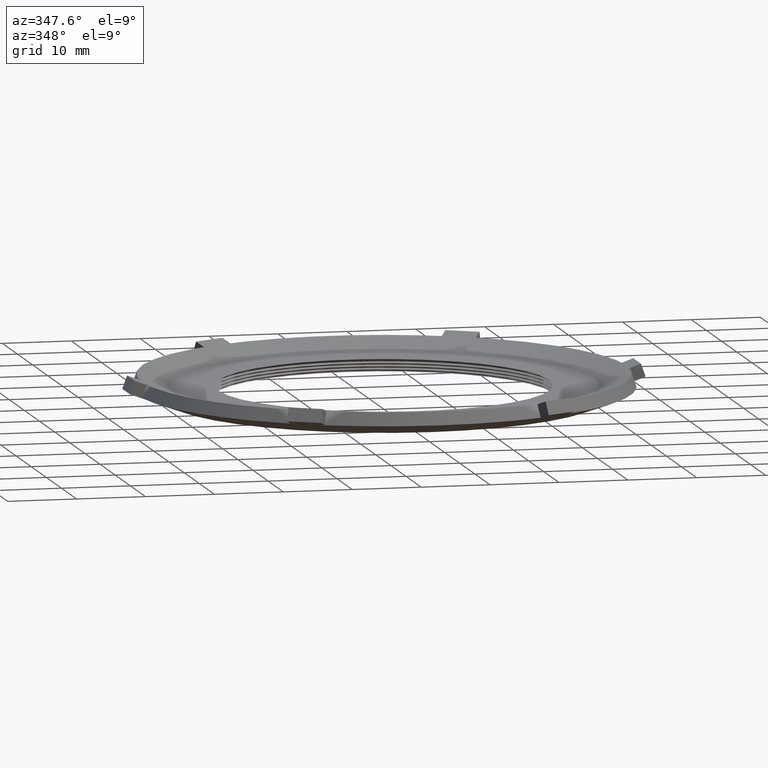
[diagram: clean part render]
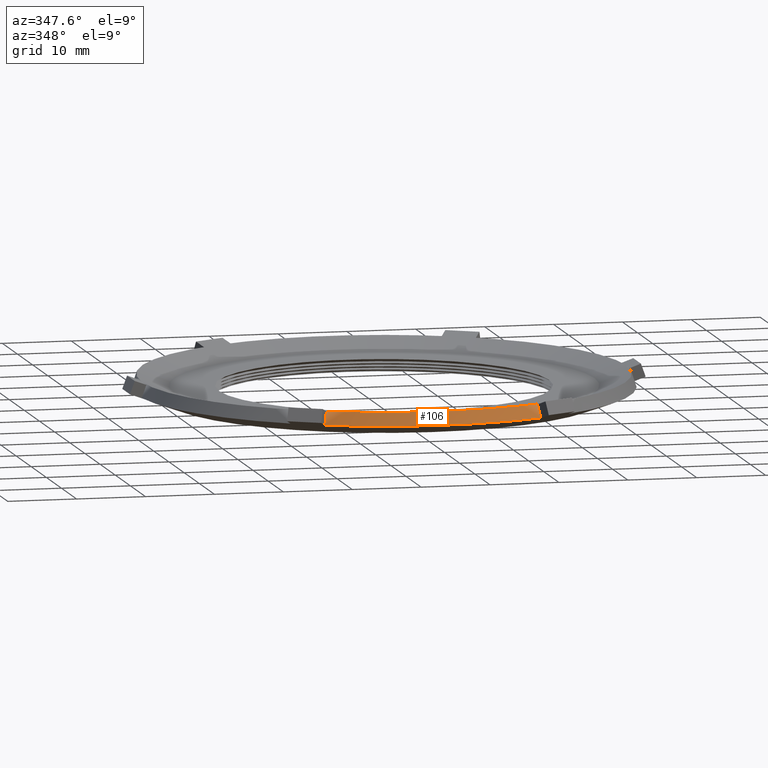
[diagram: same view with one face highlighted and labeled with its STEP entity id]
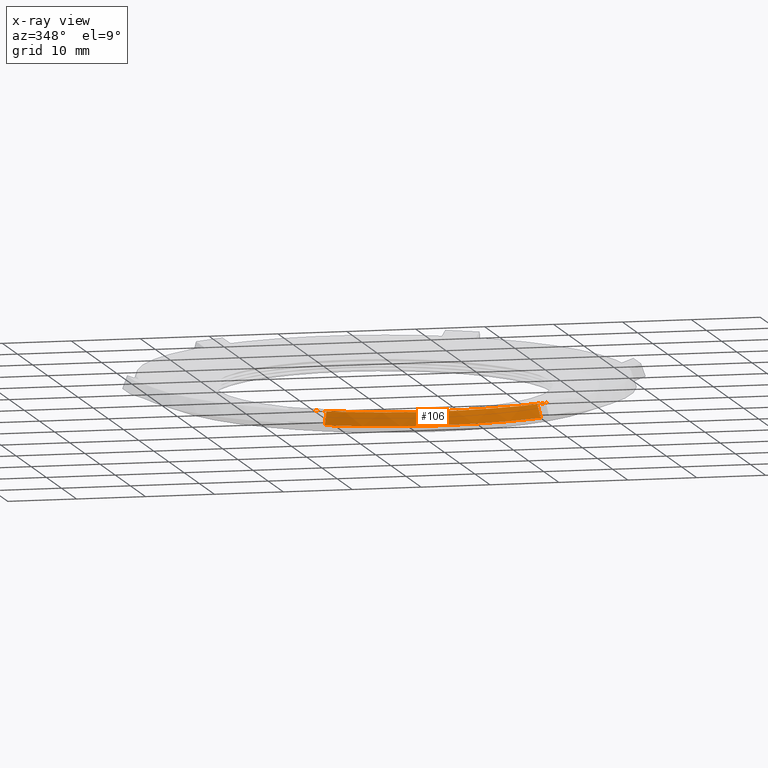
[diagram: x-ray of the same camera — body ghosted, the highlighted face saturated]
A machine part, auxiliary view. The second image highlights one B-rep face of the part: STEP entity #106.
The next image is the same camera in x-ray: the body ghosted, the highlighted face saturated — about 0% of this face is hidden behind the body in this view.
In plain terms, the highlighted conical surface has half-angle 20 deg.
Its self-contained STEP definition (entity closure, byte-faithful):
#7 = VERTEX_POINT ( 'NONE', #844 ) ;
#9 = EDGE_CURVE ( 'NONE', #7, #16, #831, .T. ) ;
#16 = VERTEX_POINT ( 'NONE', #782 ) ;
#95 = ORIENTED_EDGE ( 'NONE', *, *, #396, .T. ) ;
#101 = EDGE_CURVE ( 'NONE', #433, #16, #973, .T. ) ;
#106 = ADVANCED_FACE ( 'NONE', ( #963 ), #962, .T. ) ;
#108 = ORIENTED_EDGE ( 'NONE', *, *, #109, .F. ) ;
#109 = EDGE_CURVE ( 'NONE', #7, #158, #956, .T. ) ;
#146 = VERTEX_POINT ( 'NONE', #1058 ) ;
#155 = ORIENTED_EDGE ( 'NONE', *, *, #9, .T. ) ;
#156 = ORIENTED_EDGE ( 'NONE', *, *, #101, .F. ) ;
#157 = EDGE_LOOP ( 'NONE', ( #108, #155, #156, #397, #257, #95 ) ) ;
#158 = VERTEX_POINT ( 'NONE', #1073 ) ;
#243 = EDGE_CURVE ( 'NONE', #274, #146, #1244, .T. ) ;
#257 = ORIENTED_EDGE ( 'NONE', *, *, #243, .F. ) ;
#274 = VERTEX_POINT ( 'NONE', #1331 ) ;
#396 = EDGE_CURVE ( 'NONE', #274, #158, #1532, .T. ) ;
#397 = ORIENTED_EDGE ( 'NONE', *, *, #425, .F. ) ;
#425 = EDGE_CURVE ( 'NONE', #146, #433, #1545, .T. ) ;
#433 = VERTEX_POINT ( 'NONE', #1579 ) ;
#757 = DIRECTION ( 'NONE',  ( -1.000000000000000000, 0.0000000000000000000, 0.0000000000000000000 ) ) ;
#782 = CARTESIAN_POINT ( 'NONE',  ( -0.6914447734302168200, -1.197617478209111800, 0.06000000000000010900 ) ) ;
#829 = DIRECTION ( 'NONE',  ( -0.0000000000000000000, -0.0000000000000000000, -1.000000000000000000 ) ) ;
#830 = AXIS2_PLACEMENT_3D ( 'NONE', #837, #829, #757 ) ;
#831 = CIRCLE ( 'NONE', #830, 1.382889546860454700 ) ;
#837 = CARTESIAN_POINT ( 'NONE',  ( 0.0000000000000000000, 0.0000000000000000000, 0.05999999999999990800 ) ) ;
#844 = CARTESIAN_POINT ( 'NONE',  ( 0.6914447734302418000, -1.197617478209097600, 0.06000000000000010900 ) ) ;
#952 = CARTESIAN_POINT ( 'NONE',  ( 0.6032442958181920600, -1.244849769733186400, 0.05883679682148340600 ) ) ;
#953 = CARTESIAN_POINT ( 'NONE',  ( 0.6331431350213588800, -1.230047440914452200, 0.05961213597233693700 ) ) ;
#954 = CARTESIAN_POINT ( 'NONE',  ( 0.6625531238524068300, -1.214298079870193000, 0.05999999999999990800 ) ) ;
#955 = CARTESIAN_POINT ( 'NONE',  ( 0.6914447734302418000, -1.197617478209097600, 0.06000000000000010900 ) ) ;
#956 =( BOUNDED_CURVE ( )  B_SPLINE_CURVE ( 3, ( #955, #954, #953, #952 ),
 .UNSPECIFIED., .F., .T. ) 
 B_SPLINE_CURVE_WITH_KNOTS ( ( 4, 4 ),
 ( 3.141592653589793100, 3.204925624186388600 ),
 .UNSPECIFIED. ) 
 CURVE ( )  GEOMETRIC_REPRESENTATION_ITEM ( )  RATIONAL_B_SPLINE_CURVE ( ( 1.000000000000000000, 0.9996657725003570400, 0.9996657725003570400, 1.000000000000000000 ) ) 
 REPRESENTATION_ITEM ( '' )  );
#958 = DIRECTION ( 'NONE',  ( -1.000000000000000000, 0.0000000000000000000, 0.0000000000000000000 ) ) ;
#959 = DIRECTION ( 'NONE',  ( -0.0000000000000000000, -0.0000000000000000000, -1.000000000000000000 ) ) ;
#960 = CARTESIAN_POINT ( 'NONE',  ( 0.0000000000000000000, 0.0000000000000000000, 0.05999999999999990800 ) ) ;
#961 = AXIS2_PLACEMENT_3D ( 'NONE', #960, #959, #958 ) ;
#962 = CONICAL_SURFACE ( 'NONE', #961, 1.382889546860454700, 0.3490658503988599600 ) ;
#963 = FACE_OUTER_BOUND ( 'NONE', #157, .T. ) ;
#969 = CARTESIAN_POINT ( 'NONE',  ( -0.6914447734302168200, -1.197617478209111800, 0.06000000000000010900 ) ) ;
#970 = CARTESIAN_POINT ( 'NONE',  ( -0.6625531238523807400, -1.214298079870206100, 0.05999999999999963000 ) ) ;
#971 = CARTESIAN_POINT ( 'NONE',  ( -0.6331431350213326800, -1.230047440914464800, 0.05961213597233666600 ) ) ;
#972 = CARTESIAN_POINT ( 'NONE',  ( -0.6032442958181663000, -1.244849769733198800, 0.05883679682148351700 ) ) ;
#973 =( BOUNDED_CURVE ( )  B_SPLINE_CURVE ( 3, ( #972, #971, #970, #969 ),
 .UNSPECIFIED., .F., .T. ) 
 B_SPLINE_CURVE_WITH_KNOTS ( ( 4, 4 ),
 ( 3.078259682993197600, 3.141592653589793100 ),
 .UNSPECIFIED. ) 
 CURVE ( )  GEOMETRIC_REPRESENTATION_ITEM ( )  RATIONAL_B_SPLINE_CURVE ( ( 1.000000000000000000, 0.9996657725003570400, 0.9996657725003570400, 1.000000000000000000 ) ) 
 REPRESENTATION_ITEM ( '' )  );
#1058 = CARTESIAN_POINT ( 'NONE',  ( -0.6166221747731096500, -1.268020935780667800, -0.01448535783208481300 ) ) ;
#1073 = CARTESIAN_POINT ( 'NONE',  ( 0.6032442958181920600, -1.244849769733186400, 0.05883679682148340600 ) ) ;
#1242 = CARTESIAN_POINT ( 'NONE',  ( 0.0000000000000000000, 0.0000000000000000000, -0.01448535783208477000 ) ) ;
#1243 = AXIS2_PLACEMENT_3D ( 'NONE', #1242, #1249, #1254 ) ;
#1244 = CIRCLE ( 'NONE', #1243, 1.409999999999999900 ) ;
#1249 = DIRECTION ( 'NONE',  ( -0.0000000000000000000, -0.0000000000000000000, -1.000000000000000000 ) ) ;
#1254 = DIRECTION ( 'NONE',  ( -1.000000000000000000, 0.0000000000000000000, 0.0000000000000000000 ) ) ;
#1331 = CARTESIAN_POINT ( 'NONE',  ( 0.6166221747731359700, -1.268020935780654900, -0.01448535783208476000 ) ) ;
#1500 = CARTESIAN_POINT ( 'NONE',  ( 0.6032442958181920600, -1.244849769733186400, 0.05883679682148340600 ) ) ;
#1519 = CARTESIAN_POINT ( 'NONE',  ( 0.6077037844340293900, -1.252573830591591400, 0.03439622138126270000 ) ) ;
#1520 = CARTESIAN_POINT ( 'NONE',  ( 0.6121630737007351900, -1.260297546167172200, 0.009955500442794003700 ) ) ;
#1521 = CARTESIAN_POINT ( 'NONE',  ( 0.6166221747731359700, -1.268020935780654900, -0.01448535783208476000 ) ) ;
#1532 = B_SPLINE_CURVE_WITH_KNOTS ( 'NONE', 3,
 ( #1521, #1520, #1519, #1500 ),
 .UNSPECIFIED., .F., .F.,
 ( 4, 4 ),
 ( 2.128984767162316700E-007, 0.001982716490037713800 ),
 .UNSPECIFIED. ) ;
#1545 = B_SPLINE_CURVE_WITH_KNOTS ( 'NONE', 3,
 ( #1556, #1555, #1554, #1553 ),
 .UNSPECIFIED., .F., .F.,
 ( 4, 4 ),
 ( 2.128984767146020600E-007, 0.001982716490037714700 ),
 .UNSPECIFIED. ) ;
#1553 = CARTESIAN_POINT ( 'NONE',  ( -0.6032442958181663000, -1.244849769733198800, 0.05883679682148351700 ) ) ;
#1554 = CARTESIAN_POINT ( 'NONE',  ( -0.6077037844340033000, -1.252573830591604100, 0.03439622138126272000 ) ) ;
#1555 = CARTESIAN_POINT ( 'NONE',  ( -0.6121630737007088800, -1.260297546167185000, 0.009955500442793974200 ) ) ;
#1556 = CARTESIAN_POINT ( 'NONE',  ( -0.6166221747731096500, -1.268020935780667800, -0.01448535783208481300 ) ) ;
#1579 = CARTESIAN_POINT ( 'NONE',  ( -0.6032442958181663000, -1.244849769733198800, 0.05883679682148351700 ) ) ;